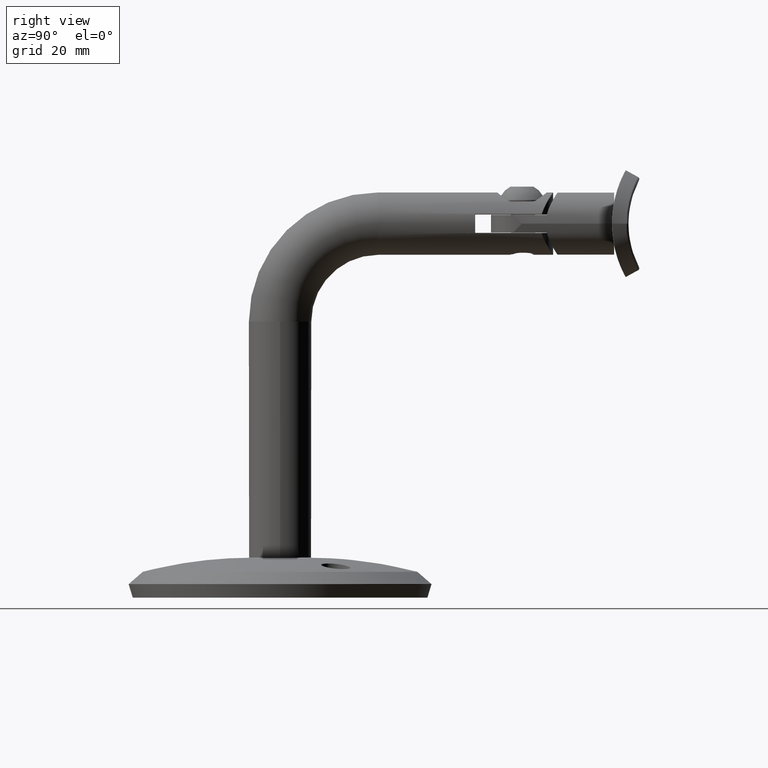
[diagram: clean part render]
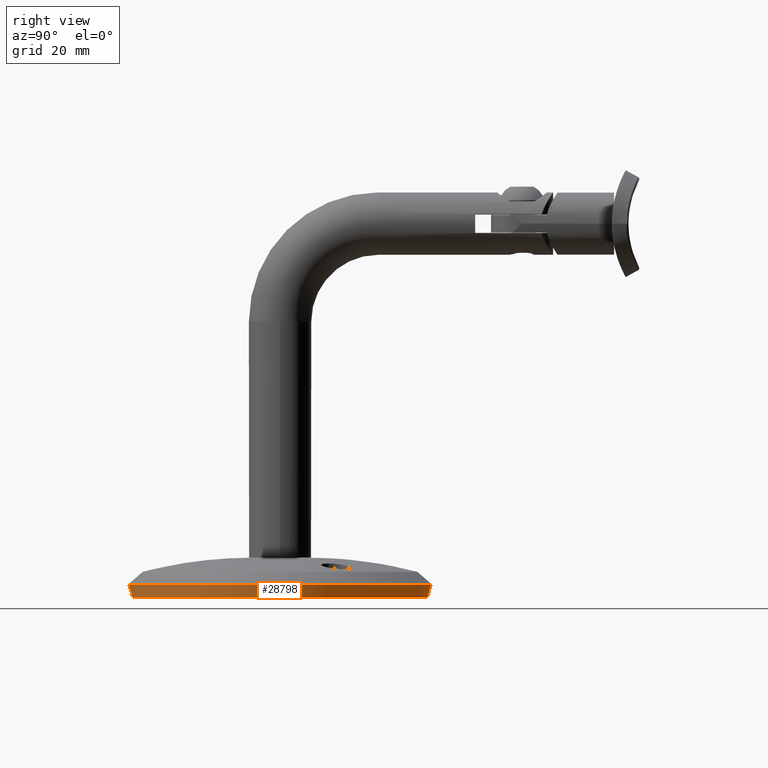
[diagram: same view with one face highlighted and labeled with its STEP entity id]
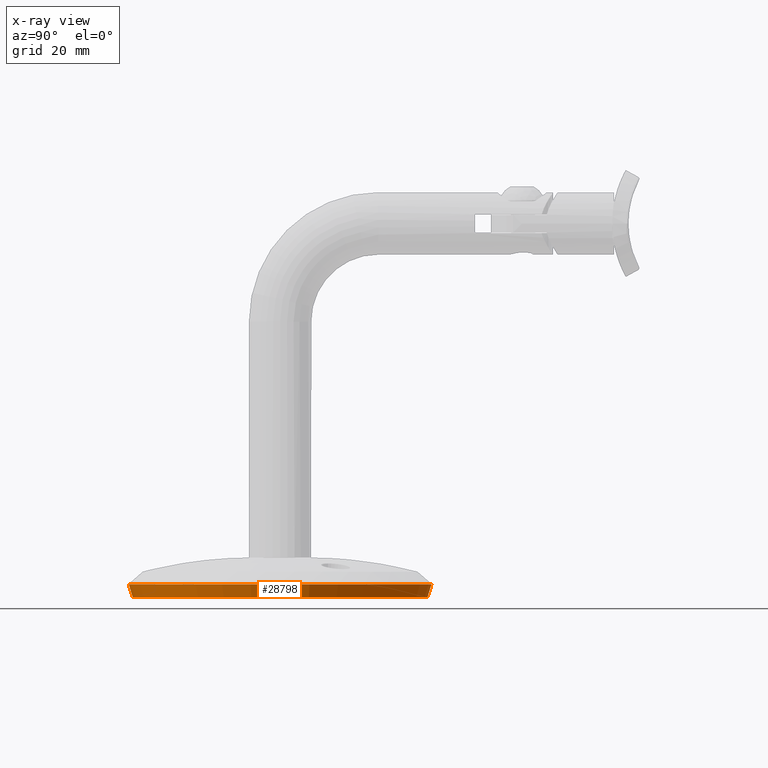
[diagram: x-ray of the same camera — body ghosted, the highlighted face saturated]
A machine part, right view. The second image highlights one B-rep face of the part: STEP entity #28798.
The next image is the same camera in x-ray: the body ghosted, the highlighted face saturated — about 0% of this face is hidden behind the body in this view.
In plain terms, the highlighted conical surface has half-angle 16.97 deg.
Its self-contained STEP definition (entity closure, byte-faithful):
#124 = CARTESIAN_POINT ( 'NONE',  ( 0.000000000000000000, 0.09559392037818137400, 33.09228068017399949 ) ) ;
#439 = VERTEX_POINT ( 'NONE', #25224 ) ;
#2653 = VERTEX_POINT ( 'NONE', #5370 ) ;
#2938 = VERTEX_POINT ( 'NONE', #124 ) ;
#3571 = CIRCLE ( 'NONE', #23593, 33.98104599633135336 ) ;
#3898 = CARTESIAN_POINT ( 'NONE',  ( 0.000000000000000000, 3.008120846515971447, 0.000000000000000000 ) ) ;
#4037 = DIRECTION ( 'NONE',  ( 0.000000000000000000, 0.000000000000000000, -1.000000000000000000 ) ) ;
#4621 = DIRECTION ( 'NONE',  ( 0.000000000000000000, 1.000000000000000000, 0.000000000000000000 ) ) ;
#5370 = CARTESIAN_POINT ( 'NONE',  ( 4.161477921108617299E-15, 3.008120846515971447, -33.98104599633136047 ) ) ;
#7168 = DIRECTION ( 'NONE',  ( -0.000000000000000000, -1.000000000000000000, -0.000000000000000000 ) ) ;
#8488 = CARTESIAN_POINT ( 'NONE',  ( 0.000000000000000000, 3.008120846515971447, 33.98104599633136047 ) ) ;
#9338 = VERTEX_POINT ( 'NONE', #8488 ) ;
#12647 = DIRECTION ( 'NONE',  ( 3.574328382818480219E-17, 0.9564592003886491778, -0.2918660617336416019 ) ) ;
#13648 = CIRCLE ( 'NONE', #21556, 33.09228068017399949 ) ;
#13676 = DIRECTION ( 'NONE',  ( 0.000000000000000000, 0.9564592003886491778, 0.2918660617336416019 ) ) ;
#14740 = CONICAL_SURFACE ( 'NONE', #34257, 33.06310994183501606, 0.2961772688391122177 ) ;
#19318 = LINE ( 'NONE', #33090, #28943 ) ;
#19959 = EDGE_CURVE ( 'NONE', #2938, #9338, #19318, .T. ) ;
#20128 = VECTOR ( 'NONE', #12647, 1000.000000000000000 ) ;
#21556 = AXIS2_PLACEMENT_3D ( 'NONE', #33539, #4621, #23786 ) ;
#21761 = EDGE_CURVE ( 'NONE', #2653, #9338, #3571, .T. ) ;
#21909 = ORIENTED_EDGE ( 'NONE', *, *, #32097, .T. ) ;
#23363 = FACE_OUTER_BOUND ( 'NONE', #36490, .T. ) ;
#23593 = AXIS2_PLACEMENT_3D ( 'NONE', #3898, #7168, #4037 ) ;
#23786 = DIRECTION ( 'NONE',  ( 0.000000000000000000, 0.000000000000000000, -1.000000000000000000 ) ) ;
#25224 = CARTESIAN_POINT ( 'NONE',  ( 4.107056741127353151E-15, 0.09559392037818137400, -33.09228068017399949 ) ) ;
#27774 = CARTESIAN_POINT ( 'NONE',  ( 0.000000000000000000, 0.000000000000000000, 0.000000000000000000 ) ) ;
#28798 = ADVANCED_FACE ( 'NONE', ( #23363 ), #14740, .T. ) ;
#28943 = VECTOR ( 'NONE', #13676, 1000.000000000000000 ) ;
#31059 = ORIENTED_EDGE ( 'NONE', *, *, #19959, .F. ) ;
#32097 = EDGE_CURVE ( 'NONE', #2938, #439, #13648, .T. ) ;
#33090 = CARTESIAN_POINT ( 'NONE',  ( 0.000000000000000000, 0.000000000000000000, 33.06310994183501606 ) ) ;
#33539 = CARTESIAN_POINT ( 'NONE',  ( 0.000000000000000000, 0.09559392037818137400, 0.000000000000000000 ) ) ;
#34257 = AXIS2_PLACEMENT_3D ( 'NONE', #27774, #34416, #40516 ) ;
#34416 = DIRECTION ( 'NONE',  ( 0.000000000000000000, 1.000000000000000000, 0.000000000000000000 ) ) ;
#34680 = ORIENTED_EDGE ( 'NONE', *, *, #40100, .T. ) ;
#35268 = ORIENTED_EDGE ( 'NONE', *, *, #21761, .T. ) ;
#36490 = EDGE_LOOP ( 'NONE', ( #21909, #34680, #35268, #31059 ) ) ;
#38354 = LINE ( 'NONE', #39006, #20128 ) ;
#39006 = CARTESIAN_POINT ( 'NONE',  ( 4.049063176012528006E-15, 0.000000000000000000, -33.06310994183501606 ) ) ;
#40100 = EDGE_CURVE ( 'NONE', #439, #2653, #38354, .T. ) ;
#40516 = DIRECTION ( 'NONE',  ( 0.000000000000000000, 0.000000000000000000, 1.000000000000000000 ) ) ;